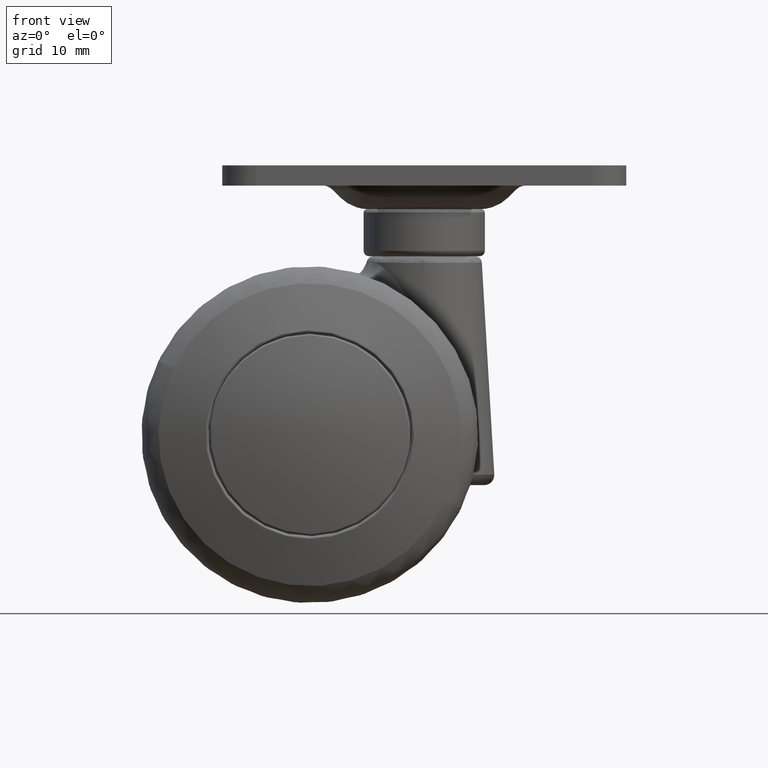
[diagram: clean part render]
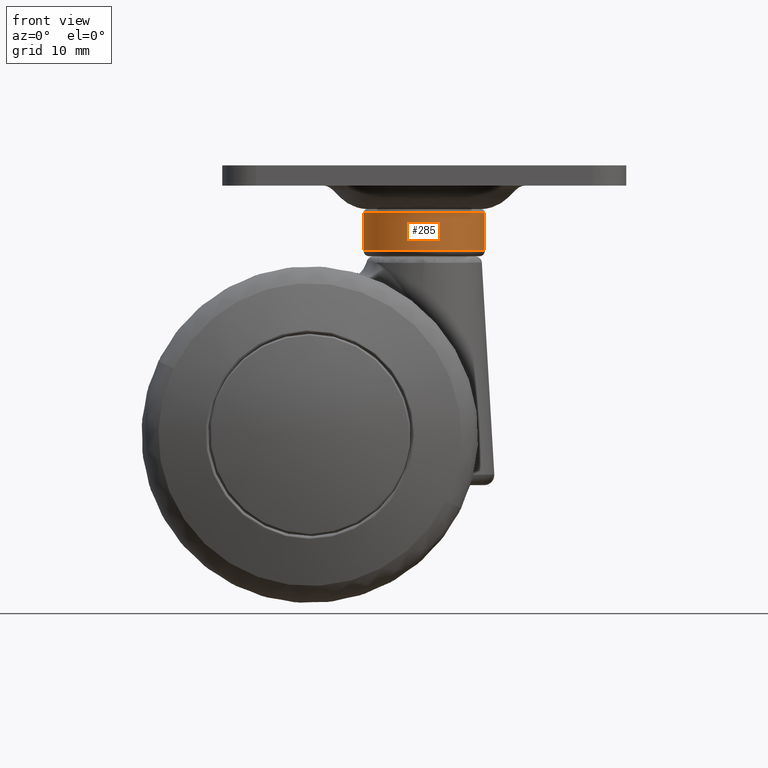
[diagram: same view with one face highlighted and labeled with its STEP entity id]
A machine part, front view. The second image highlights one B-rep face of the part: STEP entity #285.
In plain terms, the highlighted cylindrical surface (partial cylindrical patch) has radius 9 mm, axis along (-0, 0, -1).
Its self-contained STEP definition (entity closure, byte-faithful):
#285=ADVANCED_FACE('',(#1589),#1588,.T.);
#1588=CYLINDRICAL_SURFACE('',#6343,9.00000000000E+00);
#1589=FACE_OUTER_BOUND('',#6344,.T.);
#6340=CARTESIAN_POINT('',(0.00000000000E+00,9.84999990463E+00,3.43910908546E-14));
#6341=DIRECTION('',(-0.00000000000E+00,1.00000000000E+00,3.49148133884E-15));
#6342=DIRECTION('',(0.00000000000E+00,-3.49148133884E-15,1.00000000000E+00));
#6343=AXIS2_PLACEMENT_3D('',#6340,#6341,#6342);
#6344=EDGE_LOOP('',(#7033,#7034,#7035,#7036));
#7033=ORIENTED_EDGE('',*,*,#7369,.F.);
#7034=ORIENTED_EDGE('',*,*,#7366,.T.);
#7035=ORIENTED_EDGE('',*,*,#7343,.T.);
#7036=ORIENTED_EDGE('',*,*,#7368,.F.);
#7343=EDGE_CURVE('',#9204,#9197,#9205,.T.);
#7366=EDGE_CURVE('',#9349,#9204,#9350,.T.);
#7368=EDGE_CURVE('',#9356,#9197,#9363,.T.);
#7369=EDGE_CURVE('',#9349,#9356,#9369,.T.);
#9197=VERTEX_POINT('',#10885);
#9204=VERTEX_POINT('',#10889);
#9205=CIRCLE('',#10893,9.00000000000E+00);
#9349=VERTEX_POINT('',#10964);
#9350=(BOUNDED_CURVE() B_SPLINE_CURVE(1,(#10965,#10966),.UNSPECIFIED.,.F.,.F.) B_SPLINE_CURVE_WITH_KNOTS((2,2),(8.33333383004E-02,9.16666669188E-01),.UNSPECIFIED.) CURVE() GEOMETRIC_REPRESENTATION_ITEM() RATIONAL_B_SPLINE_CURVE((1.00000000000E+00,1.00000000000E+00)) REPRESENTATION_ITEM('') );
#9356=VERTEX_POINT('',#10967);
#9363=(BOUNDED_CURVE() B_SPLINE_CURVE(1,(#10972,#10973),.UNSPECIFIED.,.F.,.F.) B_SPLINE_CURVE_WITH_KNOTS((2,2),(8.33333333333E-02,9.16666666667E-01),.UNSPECIFIED.) CURVE() GEOMETRIC_REPRESENTATION_ITEM() RATIONAL_B_SPLINE_CURVE((7.50000000000E-01,7.50000000000E-01)) REPRESENTATION_ITEM('') );
#9369=CIRCLE('',#10977,9.00000000000E+00);
#10885=CARTESIAN_POINT('',(5.92118946467E-16,1.27000000000E+01,-9.00000000000E+00));
#10889=CARTESIAN_POINT('',(1.10214571844E-15,1.27000000000E+01,9.00000000000E+00));
#10890=CARTESIAN_POINT('',(0.00000000000E+00,1.27000000000E+01,4.43418130033E-14));
#10891=DIRECTION('',(0.00000000000E+00,-1.00000000000E+00,-3.55271367880E-15));
#10892=DIRECTION('',(-0.00000000000E+00,-3.55271367880E-15,1.00000000000E+00));
#10893=AXIS2_PLACEMENT_3D('',#10890,#10891,#10892);
#10964=CARTESIAN_POINT('',(5.92118946467E-16,7.00000000000E+00,9.00000000000E+00));
#10965=CARTESIAN_POINT('',(0.00000000000E+00,7.00000003397E+00,9.00000000000E+00));
#10966=CARTESIAN_POINT('',(0.00000000000E+00,1.27000000172E+01,9.00000000000E+00));
#10967=CARTESIAN_POINT('',(0.00000000000E+00,7.00000000000E+00,-9.00000000000E+00));
#10972=CARTESIAN_POINT('',(-3.20731096003E-16,7.00000000000E+00,-9.00000000000E+00));
#10973=CARTESIAN_POINT('',(-5.67447323697E-16,1.27000000000E+01,-9.00000000000E+00));
#10974=CARTESIAN_POINT('',(0.00000000000E+00,7.00000000000E+00,2.44403693719E-14));
#10975=DIRECTION('',(0.00000000000E+00,-1.00000000000E+00,-3.45402718772E-15));
#10976=DIRECTION('',(-1.22460635382E-16,3.45402718772E-15,-1.00000000000E+00));
#10977=AXIS2_PLACEMENT_3D('',#10974,#10975,#10976);